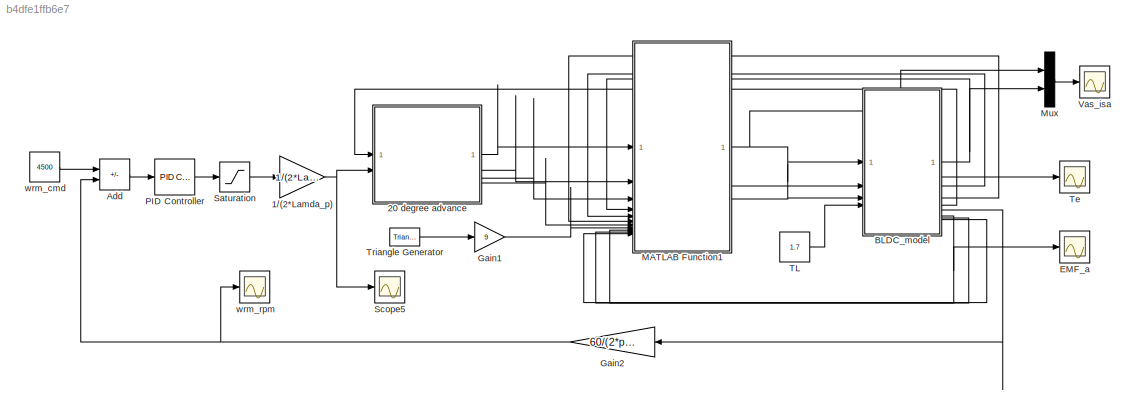
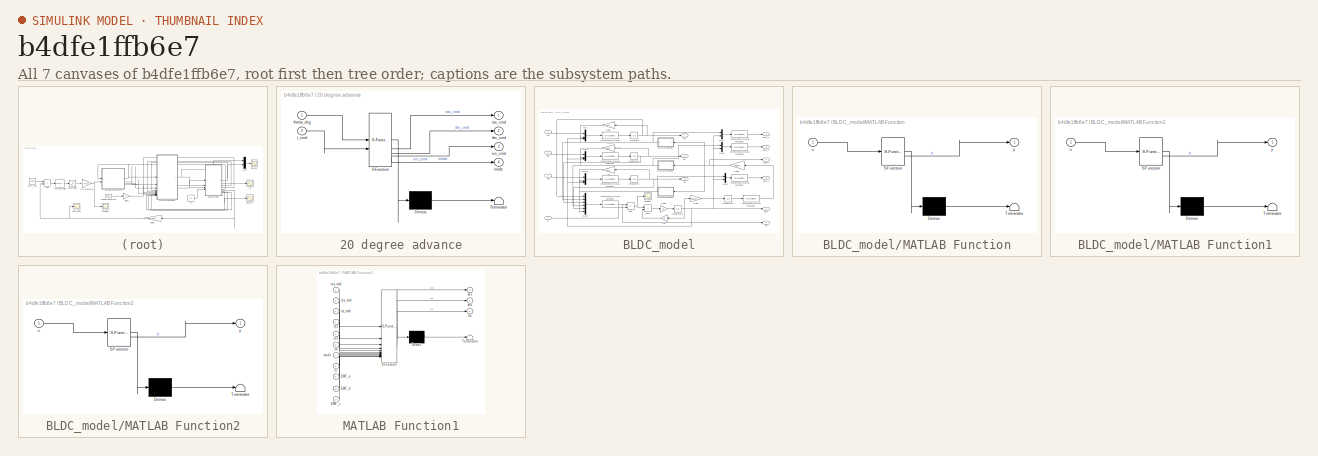
[diagram: thumbnail index - all 7 canvases of the model, root first then tree order]
MODEL slx_b4dfe1ffb6e7
KIND model
CONFIG AbsTol = auto
CONFIG EnableMultiTasking = off
CONFIG FixedStep = 0.000001
CONFIG MaxStep = auto
CONFIG MinStep = 0.000001
CONFIG RelTol = 1e-3
CONFIG SampleTimeConstraint = Unconstrained
CONFIG SolverName = VariableStepAuto
CONFIG StartTime = 0.0
CONFIG StopTime = 0.5
BLOCK [Gain] 1//(2*Lamda_p)
  Gain = 1/(2*Lamda_p)
BLOCK [SubSystem] 20 degree advance
  ErrorFcn = Stateflow.Translate.translate
  LibrarySourceBlock = simulink/User-Defined\nFunctions/MATLAB Function
  PermitHierarchicalResolution = ExplicitOnly
  SFBlockType = MATLAB Function
  TreatAsAtomicUnit = on
BLOCK [Demux] 20 degree advance/ Demux 
  Outputs = 1
BLOCK [S-Function] 20 degree advance/ SFunction 
  EnableBusSupport = on
  FunctionName = sf_sfun
  PortCounts = [2 5]
  SFcnIsStateOwnerBlock = off
  SFunctionDeploymentMode = off
  Tag = Stateflow S-Function 6
BLOCK [Terminator] 20 degree advance/ Terminator 
BLOCK [Inport] 20 degree advance/i_cmd
  Port = 2
BLOCK [Outport] 20 degree advance/ias_cmd
BLOCK [Outport] 20 degree advance/ibs_cmd
  Port = 2
BLOCK [Outport] 20 degree advance/ics_cmd
  Port = 3
BLOCK [Outport] 20 degree advance/mode
  Port = 4
BLOCK [Inport] 20 degree advance/thetar_deg
BLOCK [Sum] Add
  IconShape = rectangular
  Inputs = +-
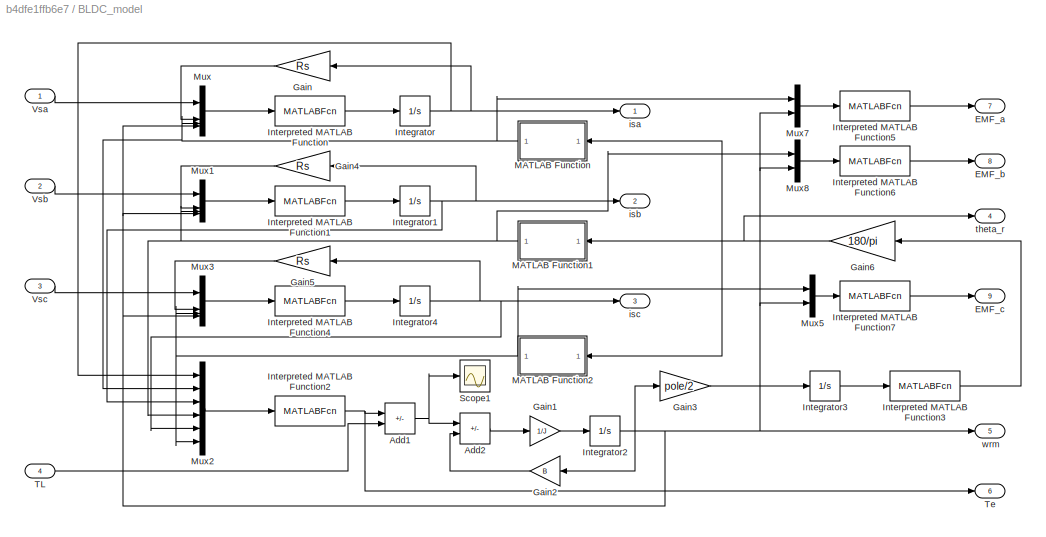
BLOCK [SubSystem] BLDC_model
BLOCK [Sum] BLDC_model/Add1
  IconShape = rectangular
  Inputs = +-
BLOCK [Sum] BLDC_model/Add2
  IconShape = rectangular
  Inputs = +-
BLOCK [Outport] BLDC_model/EMF_a
  Port = 7
BLOCK [Outport] BLDC_model/EMF_b
  Port = 8
BLOCK [Outport] BLDC_model/EMF_c
  Port = 9
BLOCK [Gain] BLDC_model/Gain
  Gain = Rs
BLOCK [Gain] BLDC_model/Gain1
  Gain = 1/J
BLOCK [Gain] BLDC_model/Gain2
  Gain = B
  NameLocation = top
BLOCK [Gain] BLDC_model/Gain3
  Gain = pole/2
BLOCK [Gain] BLDC_model/Gain4
  Gain = Rs
BLOCK [Gain] BLDC_model/Gain5
  Gain = Rs
BLOCK [Gain] BLDC_model/Gain6
  Gain = 180/pi
BLOCK [Integrator] BLDC_model/Integrator
BLOCK [Integrator] BLDC_model/Integrator1
BLOCK [Integrator] BLDC_model/Integrator2
BLOCK [Integrator] BLDC_model/Integrator3
BLOCK [Integrator] BLDC_model/Integrator4
BLOCK [MATLABFcn] BLDC_model/Interpreted MATLAB Function
  MATLABFcn = (u(1)-u(2)-u(3)*u(4)*Lamda_p)*(1/Ls_Lm)
BLOCK [MATLABFcn] BLDC_model/Interpreted MATLAB Function1
  MATLABFcn = (u(1)-u(2)-u(3)*u(4)*Lamda_p)*(1/Ls_Lm)
BLOCK [MATLABFcn] BLDC_model/Interpreted MATLAB Function2
  MATLABFcn = Lamda_p*(u(1)*u(2)+u(3)*u(4)+u(5)*u(6))
BLOCK [MATLABFcn] BLDC_model/Interpreted MATLAB Function3
  MATLABFcn = mod(u, 2*pi)
BLOCK [MATLABFcn] BLDC_model/Interpreted MATLAB Function4
  MATLABFcn = (u(1)-u(2)-u(3)*u(4)*Lamda_p)*(1/Ls_Lm)
BLOCK [MATLABFcn] BLDC_model/Interpreted MATLAB Function5
  MATLABFcn = u(1)*u(2)*Lamda_p
BLOCK [MATLABFcn] BLDC_model/Interpreted MATLAB Function6
  MATLABFcn = u(1)*u(2)*Lamda_p
BLOCK [MATLABFcn] BLDC_model/Interpreted MATLAB Function7
  MATLABFcn = u(1)*u(2)*Lamda_p
BLOCK [SubSystem] BLDC_model/MATLAB Function
  ErrorFcn = Stateflow.Translate.translate
  LibrarySourceBlock = simulink/User-Defined\nFunctions/MATLAB Function
  PermitHierarchicalResolution = ExplicitOnly
  SFBlockType = MATLAB Function
  TreatAsAtomicUnit = on
BLOCK [Demux] BLDC_model/MATLAB Function/ Demux 
  Outputs = 1
BLOCK [S-Function] BLDC_model/MATLAB Function/ SFunction 
  EnableBusSupport = on
  FunctionName = sf_sfun
  PortCounts = [1 2]
  SFcnIsStateOwnerBlock = off
  SFunctionDeploymentMode = off
  Tag = Stateflow S-Function 2
BLOCK [Terminator] BLDC_model/MATLAB Function/ Terminator 
BLOCK [Inport] BLDC_model/MATLAB Function/u
BLOCK [Outport] BLDC_model/MATLAB Function/y
BLOCK [SubSystem] BLDC_model/MATLAB Function1
  ErrorFcn = Stateflow.Translate.translate
  LibrarySourceBlock = simulink/User-Defined\nFunctions/MATLAB Function
  PermitHierarchicalResolution = ExplicitOnly
  SFBlockType = MATLAB Function
  TreatAsAtomicUnit = on
BLOCK [Demux] BLDC_model/MATLAB Function1/ Demux 
  Outputs = 1
BLOCK [S-Function] BLDC_model/MATLAB Function1/ SFunction 
  EnableBusSupport = on
  FunctionName = sf_sfun
  PortCounts = [1 2]
  SFcnIsStateOwnerBlock = off
  SFunctionDeploymentMode = off
  Tag = Stateflow S-Function 1
BLOCK [Terminator] BLDC_model/MATLAB Function1/ Terminator 
BLOCK [Inport] BLDC_model/MATLAB Function1/u
BLOCK [Outport] BLDC_model/MATLAB Function1/y
BLOCK [SubSystem] BLDC_model/MATLAB Function2
  ErrorFcn = Stateflow.Translate.translate
  LibrarySourceBlock = simulink/User-Defined\nFunctions/MATLAB Function
  PermitHierarchicalResolution = ExplicitOnly
  SFBlockType = MATLAB Function
  TreatAsAtomicUnit = on
BLOCK [Demux] BLDC_model/MATLAB Function2/ Demux 
  Outputs = 1
BLOCK [S-Function] BLDC_model/MATLAB Function2/ SFunction 
  EnableBusSupport = on
  FunctionName = sf_sfun
  PortCounts = [1 2]
  SFcnIsStateOwnerBlock = off
  SFunctionDeploymentMode = off
  Tag = Stateflow S-Function 3
BLOCK [Terminator] BLDC_model/MATLAB Function2/ Terminator 
BLOCK [Inport] BLDC_model/MATLAB Function2/u
BLOCK [Outport] BLDC_model/MATLAB Function2/y
BLOCK [Mux] BLDC_model/Mux
  DisplayOption = bar
BLOCK [Mux] BLDC_model/Mux1
  DisplayOption = bar
BLOCK [Mux] BLDC_model/Mux2
  DisplayOption = bar
  Inputs = 6
BLOCK [Mux] BLDC_model/Mux3
  DisplayOption = bar
BLOCK [Mux] BLDC_model/Mux5
  DisplayOption = bar
  Inputs = 2
BLOCK [Mux] BLDC_model/Mux7
  DisplayOption = bar
  Inputs = 2
BLOCK [Mux] BLDC_model/Mux8
  DisplayOption = bar
  Inputs = 2
BLOCK [Scope] BLDC_model/Scope1
  Floating = off
  NumInputPorts = 1
  ScopeSpecificationString = Simulink.scopes.TimeScopeBlockCfg('CurrentConfiguration', extmgr.ConfigurationSet(extmgr.Configuration('Core','General UI',true),extmgr.Configuration('Core','Source UI',true),extmgr.Configuration('Sources','WiredSimulink',true,'DataLoggingVariableName','ScopeData3'),extmgr.Configuration('Visuals','Time Domain',true,'SerializedDisplays',{struct('MinYLimReal','-2.12674','MaxYLimReal','2.14065','YLab...<+1407ch>
BLOCK [Inport] BLDC_model/TL
  Port = 4
BLOCK [Outport] BLDC_model/Te
  Port = 6
BLOCK [Inport] BLDC_model/Vsa
BLOCK [Inport] BLDC_model/Vsb
  Port = 2
BLOCK [Inport] BLDC_model/Vsc
  Port = 3
BLOCK [Outport] BLDC_model/isa
BLOCK [Outport] BLDC_model/isb
  Port = 2
BLOCK [Outport] BLDC_model/isc
  Port = 3
BLOCK [Outport] BLDC_model/theta_r
  Port = 4
BLOCK [Outport] BLDC_model/wrm
  Port = 5
BLOCK [Scope] EMF_a
  Floating = off
  NumInputPorts = 1
  ScopeSpecificationString = Simulink.scopes.TimeScopeBlockCfg('CurrentConfiguration', extmgr.ConfigurationSet(extmgr.Configuration('Core','General UI',true,'FigureColor',[1 1 1]),extmgr.Configuration('Core','Source UI',true),extmgr.Configuration('Sources','WiredSimulink',true,'DataLoggingVariableName','ScopeData3'),extmgr.Configuration('Visuals','Time Domain',true,'SerializedDisplays',{struct('MinYLimReal','38.947','MaxYLimR...<+1561ch>
BLOCK [Gain] Gain1
  Gain = 9
BLOCK [Gain] Gain2
  Gain = 60/(2*pi)
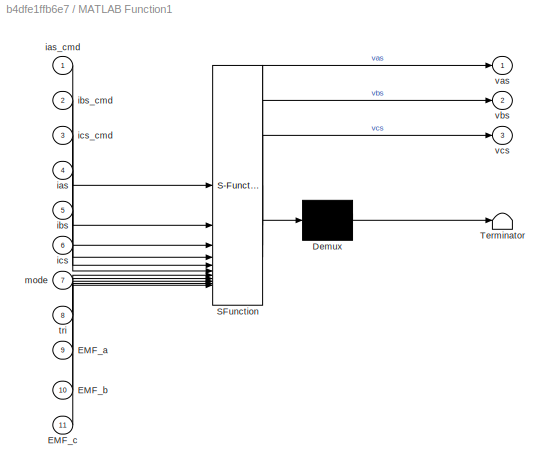
BLOCK [SubSystem] MATLAB Function1
  ErrorFcn = Stateflow.Translate.translate
  LibrarySourceBlock = simulink/User-Defined\nFunctions/MATLAB Function
  PermitHierarchicalResolution = ExplicitOnly
  SFBlockType = MATLAB Function
  TreatAsAtomicUnit = on
BLOCK [Demux] MATLAB Function1/ Demux 
  Outputs = 1
BLOCK [S-Function] MATLAB Function1/ SFunction 
  EnableBusSupport = on
  FunctionName = sf_sfun
  PortCounts = [11 4]
  SFcnIsStateOwnerBlock = off
  SFunctionDeploymentMode = off
  Tag = Stateflow S-Function 5
BLOCK [Terminator] MATLAB Function1/ Terminator 
BLOCK [Inport] MATLAB Function1/EMF_a
  Port = 9
BLOCK [Inport] MATLAB Function1/EMF_b
  Port = 10
BLOCK [Inport] MATLAB Function1/EMF_c
  Port = 11
BLOCK [Inport] MATLAB Function1/ias
  Port = 4
BLOCK [Inport] MATLAB Function1/ias_cmd
BLOCK [Inport] MATLAB Function1/ibs
  Port = 5
BLOCK [Inport] MATLAB Function1/ibs_cmd
  Port = 2
BLOCK [Inport] MATLAB Function1/ics
  Port = 6
BLOCK [Inport] MATLAB Function1/ics_cmd
  Port = 3
BLOCK [Inport] MATLAB Function1/mode
  Port = 7
BLOCK [Inport] MATLAB Function1/tri
  Port = 8
BLOCK [Outport] MATLAB Function1/vas
BLOCK [Outport] MATLAB Function1/vbs
  Port = 2
BLOCK [Outport] MATLAB Function1/vcs
  Port = 3
BLOCK [Mux] Mux
  DisplayOption = bar
  Inputs = 2
BLOCK [Reference] PID Controller  REF=slpidlib/PID Controller
  LibrarySourceBlock = simulink/Continuous/PID Controller
  SourceBlock = slpidlib/PID Controller
  SourceType = PID 1dof
BLOCK [Saturate] Saturation
  LowerLimit = -2*T_rate
  UpperLimit = 2*T_rate
BLOCK [Scope] Scope5
  Floating = off
  NumInputPorts = 1
  ScopeSpecificationString = Simulink.scopes.TimeScopeBlockCfg('CurrentConfiguration', extmgr.ConfigurationSet(extmgr.Configuration('Core','General UI',true,'FigureColor',[1 1 1]),extmgr.Configuration('Core','Source UI',true),extmgr.Configuration('Sources','WiredSimulink',true,'DataLoggingVariableName','ScopeData9'),extmgr.Configuration('Visuals','Time Domain',true,'SerializedDisplays',{struct('MinYLimReal','16.60903','MaxYLi...<+1574ch>
BLOCK [Constant] TL
  Value = 1.7
BLOCK [Scope] Te
  Floating = off
  NumInputPorts = 1
  ScopeSpecificationString = Simulink.scopes.TimeScopeBlockCfg('CurrentConfiguration', extmgr.ConfigurationSet(extmgr.Configuration('Core','General UI',true,'FigureColor',[1 1 1]),extmgr.Configuration('Core','Source UI',true),extmgr.Configuration('Sources','WiredSimulink',true,'DataLoggingVariableName','ScopeData8'),extmgr.Configuration('Visuals','Time Domain',true,'SerializedDisplays',{struct('MinYLimReal','1.80652','MaxYLim...<+1574ch>
BLOCK [Reference] Triangle Generator  REF=spsTriangleGeneratorLib/Triangle
Generator
  LibrarySourceBlock = sps_lib/Sources/Signal Generator Sources/Triangle\nGenerator
  SourceBlock = spsTriangleGeneratorLib/Triangle\nGenerator
  SourceType = Triangle Generator
BLOCK [Scope] Vas_isa
  Floating = off
  NumInputPorts = 1
  ScopeSpecificationString = Simulink.scopes.TimeScopeBlockCfg('CurrentConfiguration', extmgr.ConfigurationSet(extmgr.Configuration('Core','General UI',true,'FigureColor',[1 1 1]),extmgr.Configuration('Core','Source UI',true),extmgr.Configuration('Sources','WiredSimulink',true,'DataLoggingVariableName','ScopeData1'),extmgr.Configuration('Visuals','Time Domain',true,'SerializedDisplays',{struct('MinYLimReal','-78.37398','MaxYL...<+1596ch>
BLOCK [Constant] wrm_cmd
  Value = 4500
BLOCK [Scope] wrm_rpm
  Floating = off
  NumInputPorts = 1
  ScopeSpecificationString = Simulink.scopes.TimeScopeBlockCfg('CurrentConfiguration', extmgr.ConfigurationSet(extmgr.Configuration('Core','General UI',true,'FigureColor',[1 1 1]),extmgr.Configuration('Core','Source UI',true),extmgr.Configuration('Sources','WiredSimulink',true),extmgr.Configuration('Visuals','Time Domain',true,'SerializedDisplays',{struct('MinYLimReal','4203.38626','MaxYLimReal','4317.73903','YLabelReal','','...<+1540ch>
NET 1//(2*Lamda_p):1 -> 20 degree advance:2, Scope5:1
LINE 20 degree advance:1 -> MATLAB Function1:1
LINE 20 degree advance:2 -> MATLAB Function1:2
LINE 20 degree advance:3 -> MATLAB Function1:3
LINE 20 degree advance:4 -> MATLAB Function1:7
LINE Add:1 -> PID Controller:1
NET BLDC_model/Add1:1 -> BLDC_model/Add2:1, BLDC_model/Scope1:1
LINE BLDC_model/Add2:1 -> BLDC_model/Gain1:1
LINE BLDC_model/Gain1:1 -> BLDC_model/Integrator2:1
LINE BLDC_model/Gain2:1 -> BLDC_model/Add2:2
LINE BLDC_model/Gain3:1 -> BLDC_model/Integrator3:1
LINE BLDC_model/Gain4:1 -> BLDC_model/Mux1:2
LINE BLDC_model/Gain5:1 -> BLDC_model/Mux3:2
NET BLDC_model/Gain6:1 -> BLDC_model/MATLAB Function1:1, BLDC_model/MATLAB Function2:1, BLDC_model/MATLAB Function:1, BLDC_model/theta_r:1
LINE BLDC_model/Gain:1 -> BLDC_model/Mux:2
NET BLDC_model/Integrator1:1 -> BLDC_model/Gain4:1, BLDC_model/Mux2:3, BLDC_model/isb:1
NET BLDC_model/Integrator2:1 -> BLDC_model/Gain2:1, BLDC_model/Gain3:1, BLDC_model/Mux1:4, BLDC_model/Mux3:4, BLDC_model/Mux5:2, BLDC_model/Mux7:2, BLDC_model/Mux8:2, BLDC_model/Mux:4, BLDC_model/wrm:1
LINE BLDC_model/Integrator3:1 -> BLDC_model/Interpreted MATLAB Function3:1
NET BLDC_model/Integrator4:1 -> BLDC_model/Gain5:1, BLDC_model/Mux2:5, BLDC_model/isc:1
NET BLDC_model/Integrator:1 -> BLDC_model/Gain:1, BLDC_model/Mux2:1, BLDC_model/isa:1
LINE BLDC_model/Interpreted MATLAB Function1:1 -> BLDC_model/Integrator1:1
NET BLDC_model/Interpreted MATLAB Function2:1 -> BLDC_model/Add1:1, BLDC_model/Te:1
LINE BLDC_model/Interpreted MATLAB Function3:1 -> BLDC_model/Gain6:1
LINE BLDC_model/Interpreted MATLAB Function4:1 -> BLDC_model/Integrator4:1
LINE BLDC_model/Interpreted MATLAB Function5:1 -> BLDC_model/EMF_a:1
LINE BLDC_model/Interpreted MATLAB Function6:1 -> BLDC_model/EMF_b:1
LINE BLDC_model/Interpreted MATLAB Function7:1 -> BLDC_model/EMF_c:1
LINE BLDC_model/Interpreted MATLAB Function:1 -> BLDC_model/Integrator:1
NET BLDC_model/MATLAB Function1:1 -> BLDC_model/Mux1:3, BLDC_model/Mux2:4, BLDC_model/Mux8:1
NET BLDC_model/MATLAB Function2:1 -> BLDC_model/Mux2:6, BLDC_model/Mux3:3, BLDC_model/Mux5:1
NET BLDC_model/MATLAB Function:1 -> BLDC_model/Mux2:2, BLDC_model/Mux7:1, BLDC_model/Mux:3
LINE BLDC_model/Mux1:1 -> BLDC_model/Interpreted MATLAB Function1:1
LINE BLDC_model/Mux2:1 -> BLDC_model/Interpreted MATLAB Function2:1
LINE BLDC_model/Mux3:1 -> BLDC_model/Interpreted MATLAB Function4:1
LINE BLDC_model/Mux5:1 -> BLDC_model/Interpreted MATLAB Function7:1
LINE BLDC_model/Mux7:1 -> BLDC_model/Interpreted MATLAB Function5:1
LINE BLDC_model/Mux8:1 -> BLDC_model/Interpreted MATLAB Function6:1
LINE BLDC_model/Mux:1 -> BLDC_model/Interpreted MATLAB Function:1
LINE BLDC_model/TL:1 -> BLDC_model/Add1:2
LINE BLDC_model/Vsa:1 -> BLDC_model/Mux:1
LINE BLDC_model/Vsb:1 -> BLDC_model/Mux1:1
LINE BLDC_model/Vsc:1 -> BLDC_model/Mux3:1
NET BLDC_model:1 -> MATLAB Function1:4, Mux:2
LINE BLDC_model:2 -> MATLAB Function1:5
LINE BLDC_model:3 -> MATLAB Function1:6
LINE BLDC_model:4 -> 20 degree advance:1
LINE BLDC_model:5 -> Gain2:1
LINE BLDC_model:6 -> Te:1
NET BLDC_model:7 -> EMF_a:1, MATLAB Function1:9
LINE BLDC_model:8 -> MATLAB Function1:10
LINE BLDC_model:9 -> MATLAB Function1:11
LINE Gain1:1 -> MATLAB Function1:8
NET Gain2:1 -> Add:2, wrm_rpm:1
NET MATLAB Function1:1 -> BLDC_model:1, Mux:1
LINE MATLAB Function1:2 -> BLDC_model:2
LINE MATLAB Function1:3 -> BLDC_model:3
LINE Mux:1 -> Vas_isa:1
LINE PID Controller:1 -> Saturation:1
LINE Saturation:1 -> 1//(2*Lamda_p):1
LINE TL:1 -> BLDC_model:4
LINE Triangle Generator:1 -> Gain1:1
LINE wrm_cmd:1 -> Add:1
note: NET lines group one-source signal fan-out (src -> all destinations, sorted); 1:1 wires keep LINE
CHART BLDC_model/MATLAB Function1 states=1 transitions=1
  STATE_LABEL 'eML_blk_kernel()'
  STATE_LABEL 'SCRIPT:\nfunction y = fbs(u)\n    if ((u>=0) && (u<90))\n        y = -1;\n    elseif ((u>=90) && (u<150))\n        y = u/30 - 4;\n    elseif ((u>=150) && (u<270))\n        y = 1;\n    elseif ((u>=270) && (u<330))\n        y = -u/30 + 10;\n    elseif ((u>=330) && (u<=360))\n        y = -1;\n    else\n        y = 0;\n    end\n'
CHART BLDC_model/MATLAB Function states=1 transitions=1
  STATE_LABEL 'eML_blk_kernel()'
  STATE_LABEL 'SCRIPT:\nfunction y = fas(u)\n    if ((u>=0) && (u<30))\n        y = u/30;\n    elseif ((u>=30) && (u<150))\n        y = 1;\n    elseif ((u>=150) && (u<210))\n        y = -u/30 + 6;\n    elseif ((u>=210) && (u<330))\n        y = -1;\n    elseif ((u>=330) && (u<=360))\n        y = u/30 - 12;\n    else \n        y = 0;\n    end'
CHART BLDC_model/MATLAB Function2 states=1 transitions=1
  STATE_LABEL 'eML_blk_kernel()'
  STATE_LABEL 'SCRIPT:\nfunction y = fcs(u)\n    if ((u>=0) && (u<30))\n        y = 1;\n    elseif ((u>=30) && (u<90))\n        y = -u/30 + 2;\n    elseif ((u>=90) && (u<210))\n        y = -1;\n    elseif ((u>=210) && (u<270))\n        y = u/30 - 8;\n    elseif ((u>=270) && (u<=360))\n        y = 1;\n    else\n        y = 0;\n    end\n'
CHART MATLAB Function1 states=1 transitions=1
  STATE_LABEL 'eML_blk_kernel()'
  STATE_LABEL 'SCRIPT:\nfunction [vas, vbs, vcs] = PWM_inverter(ias_cmd, ibs_cmd, ics_cmd, ias, ibs, ics, mode, tri, EMF_a, EMF_b, EMF_c)\n    kp_i = 100; vc_lim_p = 9; vc_lim_n = -9;\n    vdc = 160; vas = 0; vbs = 0; vcs = 0;\n    if ((mode~=1)&&(mode~=4))\n        vasc = kp_i*(ias_cmd-ias);\n        if (vasc > vc_lim_p)\n            vasc = vc_lim_p;\n        elseif (vasc < vc_lim_n)\n            vasc = vc_lim_n;\n      ...<+1558ch>'
CHART 20 degree advance states=1 transitions=1
  STATE_LABEL 'eML_blk_kernel()'
  STATE_LABEL 'SCRIPT:\nfunction [ias_cmd, ibs_cmd, ics_cmd, mode] = iCmd(thetar_deg, i_cmd)\n    if (((thetar_deg>=0) && (thetar_deg<10))||((thetar_deg>=310) && (thetar_deg<=360)))\n        mode = 1;\n        ias_cmd = 0;\n        ibs_cmd = -i_cmd;\n        ics_cmd = i_cmd;\n    elseif ((thetar_deg>=10) && (thetar_deg<70))\n        mode = 2;\n        ias_cmd = i_cmd;\n        ibs_cmd = -i_cmd;\n        ics_cmd = 0;\n    el...<+680ch>'
CHART  states=0 transitions=0
CHART  states=0 transitions=0
CHART  states=0 transitions=0
CHART  states=0 transitions=0
CHART  states=0 transitions=0
